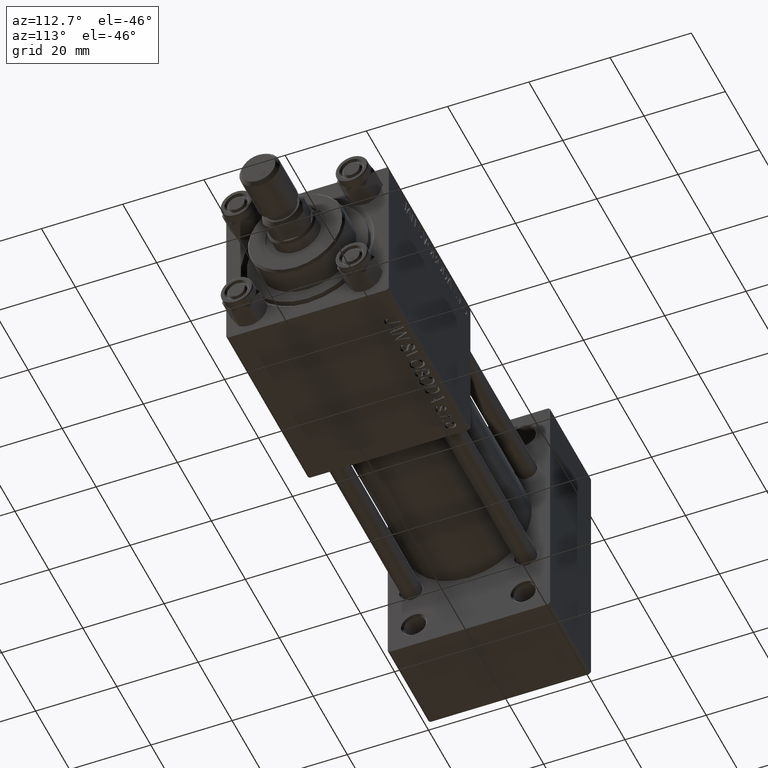
[diagram: clean part render]
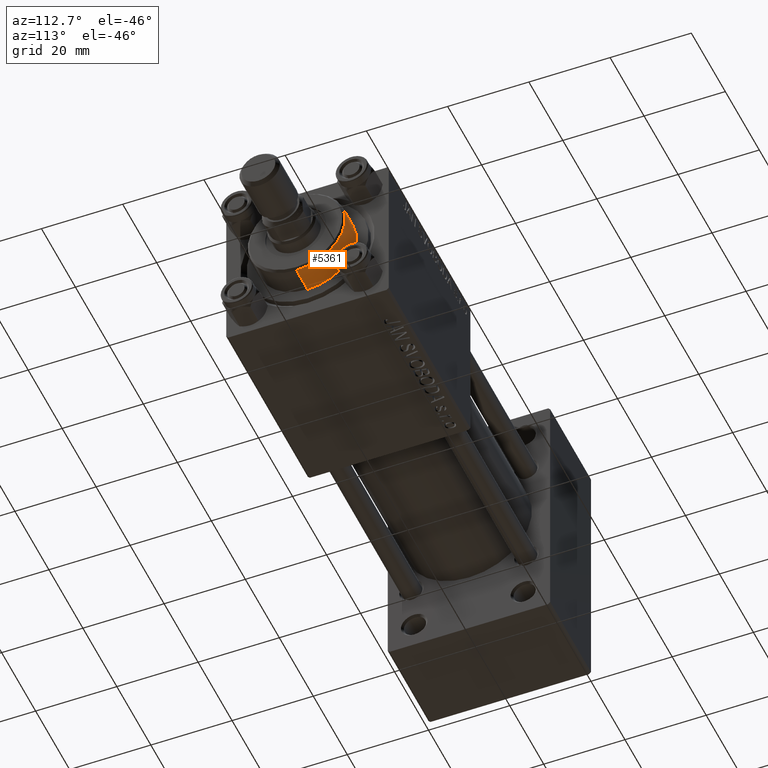
[diagram: same view with one face highlighted and labeled with its STEP entity id]
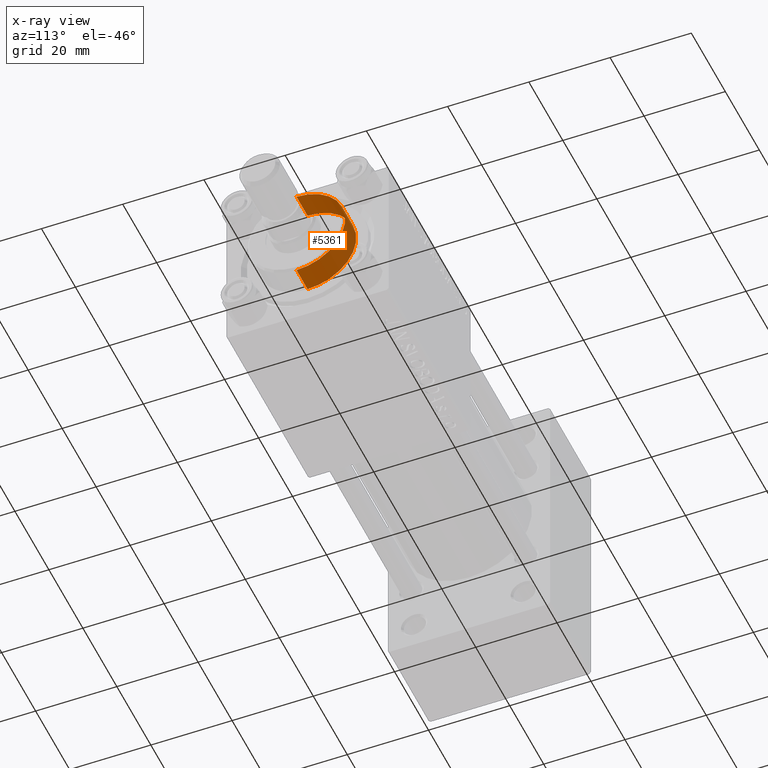
[diagram: x-ray of the same camera — body ghosted, the highlighted face saturated]
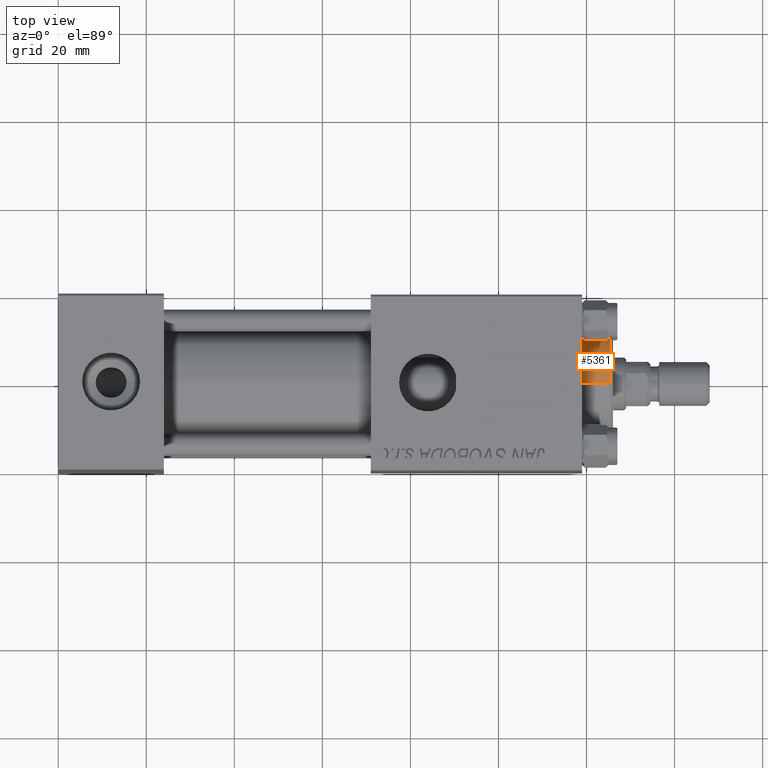
[diagram: same view with one face highlighted and labeled with its STEP entity id]
A machine part, auxiliary view. The second image highlights one B-rep face of the part: STEP entity #5361.
The next image is the same camera in x-ray: the body ghosted, the highlighted face saturated — about 0% of this face is hidden behind the body in this view.
A second angle (top view) of the same face is appended — the face is thin or edge-on in the first view.
In plain terms, the highlighted cylindrical surface (partial cylindrical patch) has radius 12 mm, axis along (-1, -0, 0).
Its self-contained STEP definition (entity closure, byte-faithful):
#1083 = CYLINDRICAL_SURFACE ( 'NONE', #22911, 12.00000000000000178 ) ;
#1787 = DIRECTION ( 'NONE',  ( -0.000000000000000000, -0.000000000000000000, -1.000000000000000000 ) ) ;
#1871 = CARTESIAN_POINT ( 'NONE',  ( -12.00000000000000178, 0.000000000000000000, 28.69999999999999929 ) ) ;
#3151 = DIRECTION ( 'NONE',  ( 0.000000000000000000, 0.000000000000000000, -1.000000000000000000 ) ) ;
#5361 = ADVANCED_FACE ( 'NONE', ( #16120 ), #1083, .T. ) ;
#6381 = DIRECTION ( 'NONE',  ( 1.000000000000000000, 0.000000000000000000, 0.000000000000000000 ) ) ;
#7259 = VECTOR ( 'NONE', #1787, 1000.000000000000000 ) ;
#10713 = DIRECTION ( 'NONE',  ( 0.000000000000000000, 0.000000000000000000, 1.000000000000000000 ) ) ;
#12243 = LINE ( 'NONE', #31833, #28319 ) ;
#14887 = DIRECTION ( 'NONE',  ( 1.000000000000000000, 0.000000000000000000, 0.000000000000000000 ) ) ;
#16120 = FACE_OUTER_BOUND ( 'NONE', #24757, .T. ) ;
#16813 = CARTESIAN_POINT ( 'NONE',  ( -12.00000000000000178, 0.000000000000000000, 35.70000000000000284 ) ) ;
#19663 = CARTESIAN_POINT ( 'NONE',  ( 12.00000000000000178, 1.469576158976824144E-15, 28.69999999999999929 ) ) ;
#20630 = LINE ( 'NONE', #16813, #7259 ) ;
#20968 = VERTEX_POINT ( 'NONE', #19663 ) ;
#22381 = EDGE_CURVE ( 'NONE', #48551, #20968, #12243, .T. ) ;
#22911 = AXIS2_PLACEMENT_3D ( 'NONE', #23753, #39287, #39531 ) ;
#23753 = CARTESIAN_POINT ( 'NONE',  ( 0.000000000000000000, 0.000000000000000000, 35.70000000000000284 ) ) ;
#24479 = VERTEX_POINT ( 'NONE', #1871 ) ;
#24757 = EDGE_LOOP ( 'NONE', ( #31023, #28882, #43234, #26446 ) ) ;
#26073 = CARTESIAN_POINT ( 'NONE',  ( 0.000000000000000000, 0.000000000000000000, 35.19999999999999574 ) ) ;
#26446 = ORIENTED_EDGE ( 'NONE', *, *, #27138, .F. ) ;
#27138 = EDGE_CURVE ( 'NONE', #48760, #24479, #20630, .T. ) ;
#27200 = EDGE_CURVE ( 'NONE', #20968, #24479, #35710, .T. ) ;
#28319 = VECTOR ( 'NONE', #35178, 1000.000000000000000 ) ;
#28882 = ORIENTED_EDGE ( 'NONE', *, *, #22381, .T. ) ;
#29947 = AXIS2_PLACEMENT_3D ( 'NONE', #26073, #3151, #14887 ) ;
#30306 = CARTESIAN_POINT ( 'NONE',  ( 0.000000000000000000, 0.000000000000000000, 28.69999999999999929 ) ) ;
#31023 = ORIENTED_EDGE ( 'NONE', *, *, #44644, .T. ) ;
#31833 = CARTESIAN_POINT ( 'NONE',  ( 12.00000000000000178, 1.469576158976824144E-15, 35.70000000000000284 ) ) ;
#35178 = DIRECTION ( 'NONE',  ( -0.000000000000000000, -0.000000000000000000, -1.000000000000000000 ) ) ;
#35649 = CIRCLE ( 'NONE', #29947, 12.00000000000000178 ) ;
#35710 = CIRCLE ( 'NONE', #48703, 12.00000000000000178 ) ;
#37511 = CARTESIAN_POINT ( 'NONE',  ( -12.00000000000000178, 0.000000000000000000, 35.19999999999999574 ) ) ;
#39287 = DIRECTION ( 'NONE',  ( -0.000000000000000000, -0.000000000000000000, -1.000000000000000000 ) ) ;
#39531 = DIRECTION ( 'NONE',  ( -1.000000000000000000, 0.000000000000000000, 0.000000000000000000 ) ) ;
#43234 = ORIENTED_EDGE ( 'NONE', *, *, #27200, .T. ) ;
#44644 = EDGE_CURVE ( 'NONE', #48760, #48551, #35649, .T. ) ;
#47456 = CARTESIAN_POINT ( 'NONE',  ( 12.00000000000000178, 1.469576158976824144E-15, 35.19999999999999574 ) ) ;
#48551 = VERTEX_POINT ( 'NONE', #47456 ) ;
#48703 = AXIS2_PLACEMENT_3D ( 'NONE', #30306, #10713, #6381 ) ;
#48760 = VERTEX_POINT ( 'NONE', #37511 ) ;